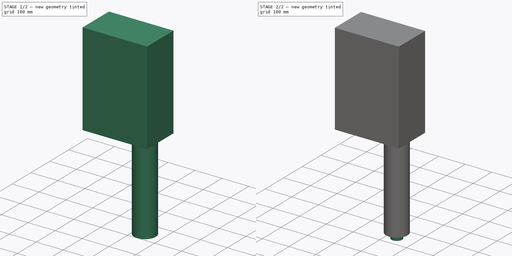
[diagram: build sequence overview — one tinted view per stage of 2, left to right]
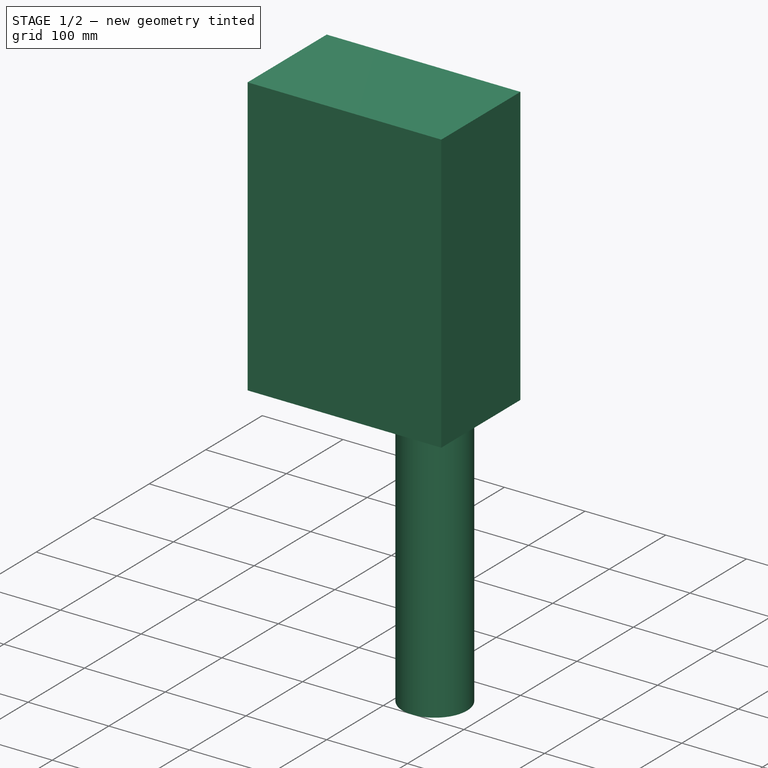
[diagram: stage 1 of 2 — iso view after this stage's code; geometry added in this stage tinted green]
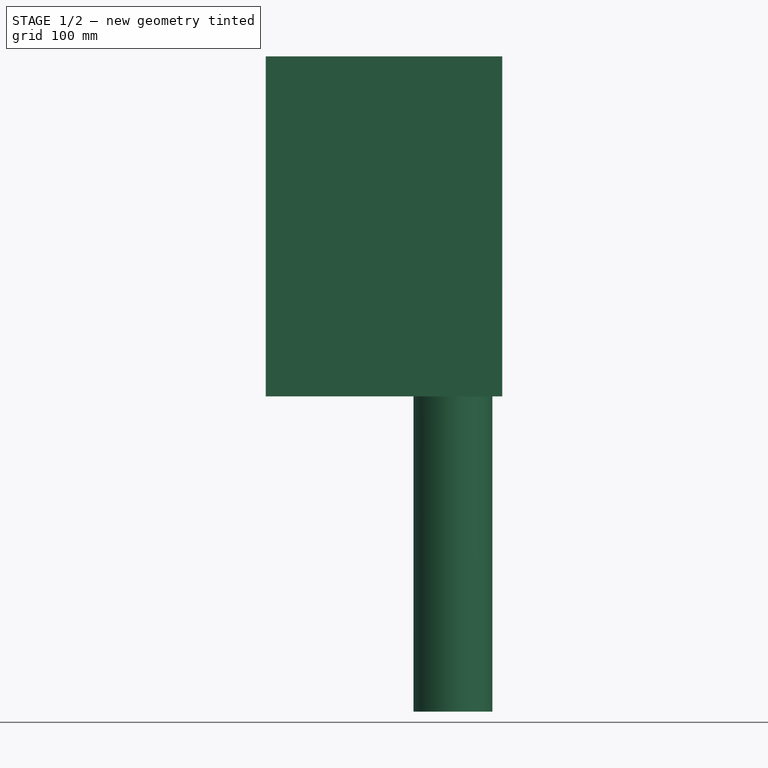
[diagram: stage 1 of 2 — front view after this stage's code; geometry added in this stage tinted green]
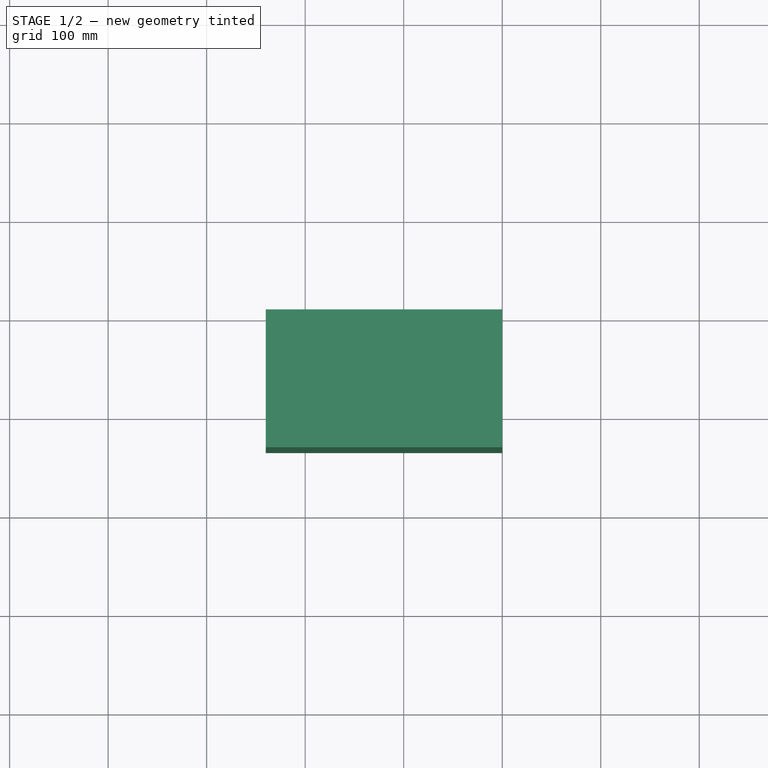
[diagram: stage 1 of 2 — top view after this stage's code; geometry added in this stage tinted green]
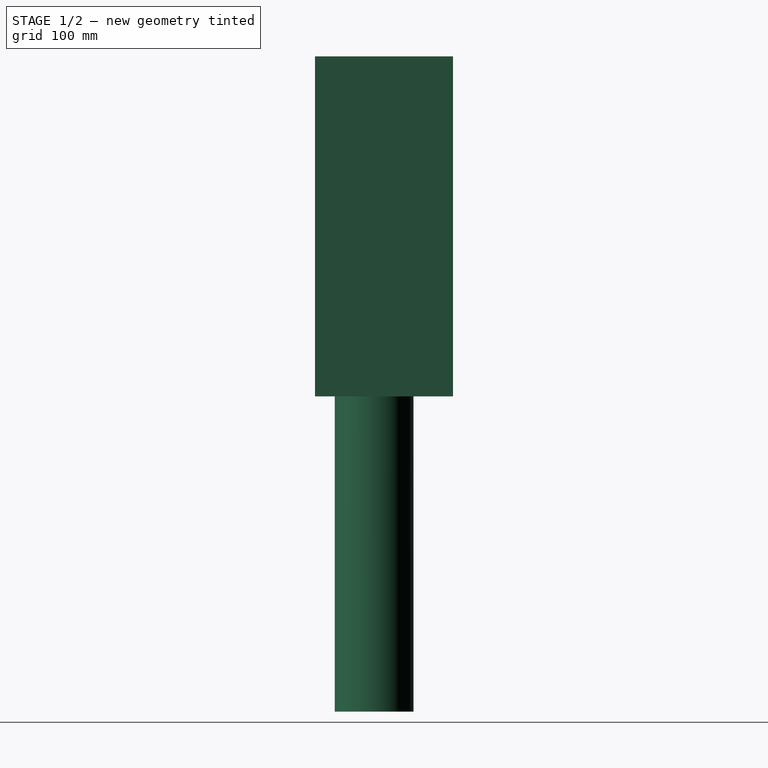
[diagram: stage 1 of 2 — right view after this stage's code; geometry added in this stage tinted green]
FCSTD DOCUMENT  (FreeCAD 0.15R4619 (Git))
Label: diode
License: All rights reserved
LicenseURL: http://en.wikipedia.org/wiki/All_rights_reserved
objects: Sketcher::SketchObject×4, PartDesign::Pad×4
note: 12 computed .brp shape members not serialized (recipe doc carries the construction recipe); baked Part::Feature solids carry a one-line shape summary decoded from their .brp

FEATURE [Sketcher::SketchObject] Sketch
  Placement = pos=(0,0,0) rot=(1,0,0;1.5708rad)
  sketch-geometry (4):
    g0: LineSegment StartX=-140 StartY=170 StartZ=0 EndX=100 EndY=170 EndZ=0
    g1: LineSegment StartX=100 StartY=170 StartZ=0 EndX=100 EndY=-175 EndZ=0
    g2: LineSegment StartX=100 StartY=-175 StartZ=0 EndX=-140 EndY=-175 EndZ=0
    g3: LineSegment StartX=-140 StartY=-175 StartZ=0 EndX=-140 EndY=170 EndZ=0
  constraints (12):
    c: Coincident(g0,g1)
    c: Coincident(g1,g2)
    c: Coincident(g2,g3)
    c: Coincident(g3,g0)
    c: Horizontal(g0)
    c: Horizontal(g2)
    c: Vertical(g1)
    c: Vertical(g3)
    c: Distance(g0) = 240
    c: Distance(g3) = 345
    c: Distance(g-1,g0) = 170
    c: DistanceX(g-1,g0) = 100
FEATURE [PartDesign::Pad] Pad
  Length = 140
  Length2 = 100
  Placement = pos=(0,0,0) rot=(1,0,0;1.5708rad)
  Sketch = -> Sketch
  Type = 0
FEATURE [Sketcher::SketchObject] Sketch002
  Placement = pos=(0,0,-175) rot=(1,0,0;3.14159rad)
  Support = -> Pad [Face3]
  sketch-geometry (1):
    g0: Circle CenterX=50 CenterY=80 CenterZ=0 NormalX=0 NormalY=0 NormalZ=1 Radius=40
  constraints (3):
    c: Radius(g0) = 40
    c: DistanceY(g-1,g0) = 80
    c: DistanceX(g-1,g0) = 50
FEATURE [PartDesign::Pad] Pad002
  Length = 320
  Length2 = 100
  Placement = pos=(0,0,0) rot=(1,0,0;1.5708rad)
  Sketch = -> Sketch002
  Type = 0
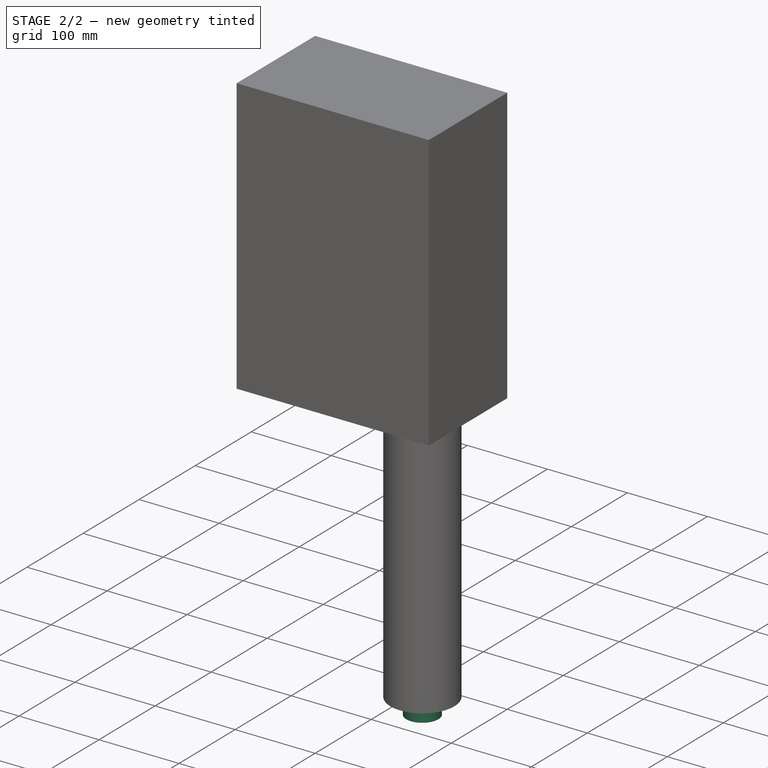
[diagram: stage 2 of 2 — iso view after this stage's code; geometry added in this stage tinted green]
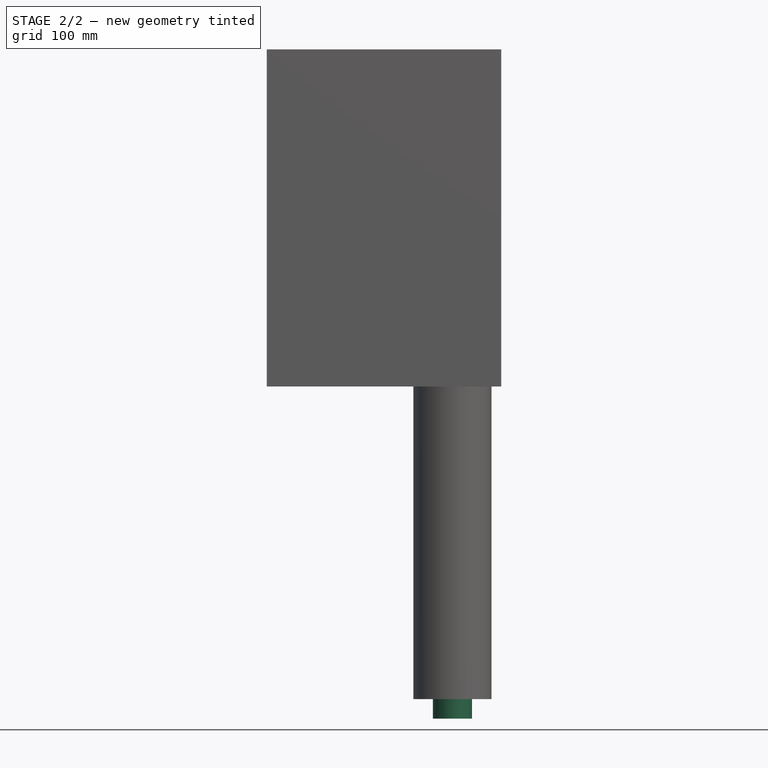
[diagram: stage 2 of 2 — front view after this stage's code; geometry added in this stage tinted green]
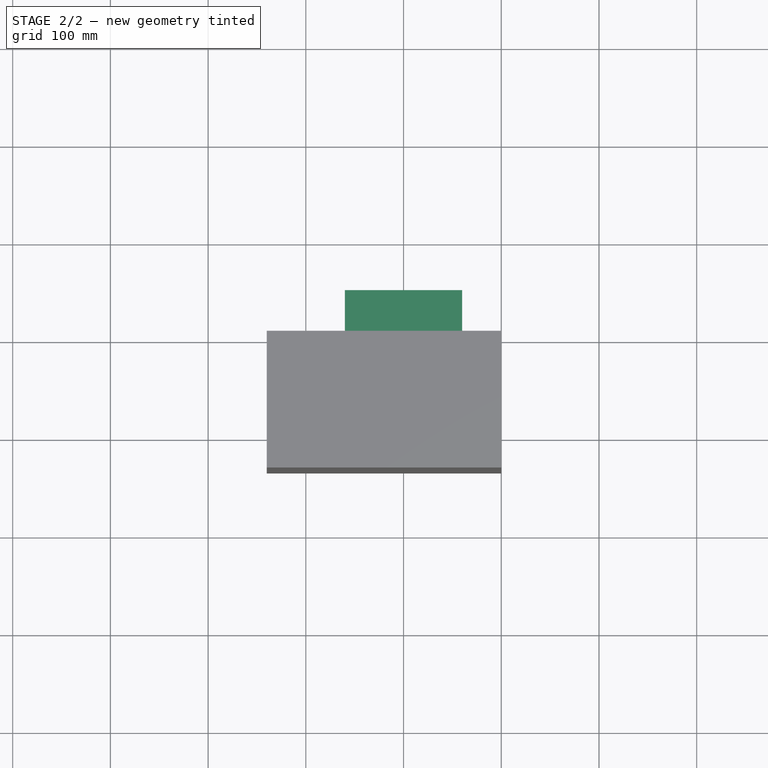
[diagram: stage 2 of 2 — top view after this stage's code; geometry added in this stage tinted green]
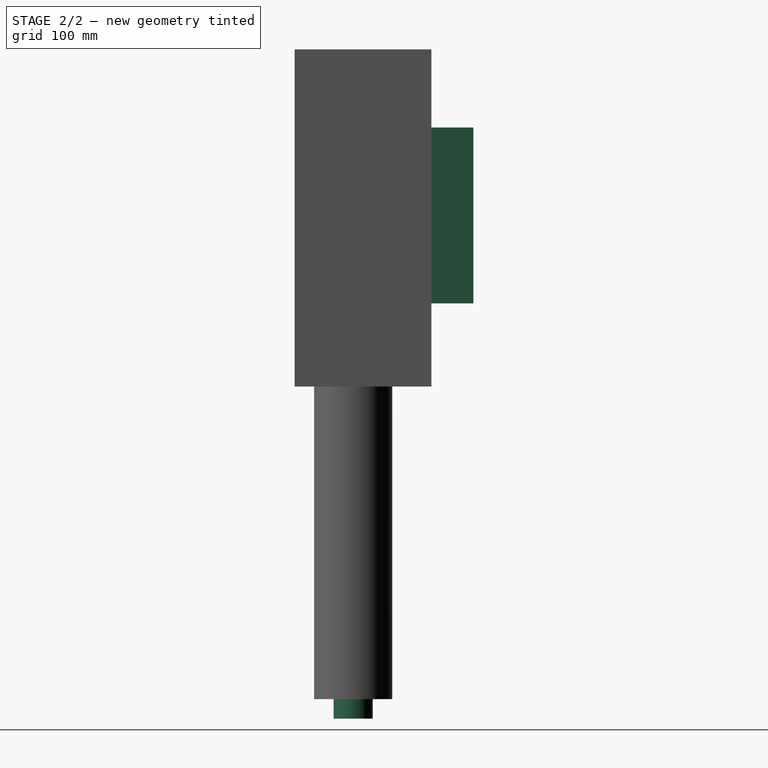
[diagram: stage 2 of 2 — right view after this stage's code; geometry added in this stage tinted green]
FEATURE [Sketcher::SketchObject] Sketch001
  ExternalGeometry = -> [Pad]
  Placement = pos=(0,0,0) rot=(-1,0,0;1.5708rad)
  Support = -> Pad [Face5]
  sketch-geometry (4):
    g0: LineSegment StartX=-60 StartY=90 StartZ=0 EndX=60 EndY=90 EndZ=0
    g1: LineSegment StartX=60 StartY=90 StartZ=0 EndX=60 EndY=-90 EndZ=0
    g2: LineSegment StartX=60 StartY=-90 StartZ=0 EndX=-60 EndY=-90 EndZ=0
    g3: LineSegment StartX=-60 StartY=-90 StartZ=0 EndX=-60 EndY=90 EndZ=0
  constraints (12):
    c: Coincident(g0,g1)
    c: Coincident(g1,g2)
    c: Coincident(g2,g3)
    c: Coincident(g3,g0)
    c: Horizontal(g0)
    c: Horizontal(g2)
    c: Vertical(g1)
    c: Vertical(g3)
    c: DistanceY(g1) = -180
    c: DistanceX(g0) = 120
    c: Distance(g2,g-3) = 80
    c: Symmetric(g0,g0,g-2)
FEATURE [PartDesign::Pad] Pad001
  Length = 43
  Length2 = 100
  Placement = pos=(0,0,0) rot=(1,0,0;1.5708rad)
  Sketch = -> Sketch001
  Type = 0
FEATURE [Sketcher::SketchObject] Sketch003
  ExternalGeometry = -> [Pad002]
  Placement = pos=(0,0,-495) rot=(1,0,0;3.14159rad)
  Support = -> Pad002 [Face8]
  sketch-geometry (1):
    g0: Circle CenterX=50 CenterY=80 CenterZ=0 NormalX=0 NormalY=0 NormalZ=1 Radius=20
  constraints (2):
    c: Coincident(g0,g-3)
    c: Radius(g0) = 20
FEATURE [PartDesign::Pad] Pad003
  Length = 20
  Length2 = 100
  Placement = pos=(0,0,0) rot=(1,0,0;1.5708rad)
  Sketch = -> Sketch003
  Type = 0
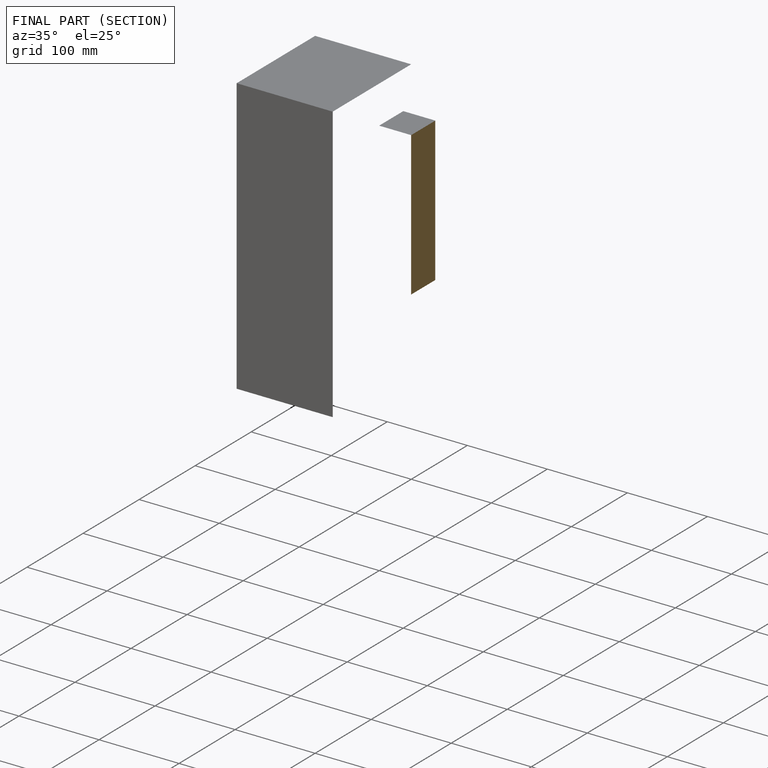
[diagram: finished part — half-section view (interior)]
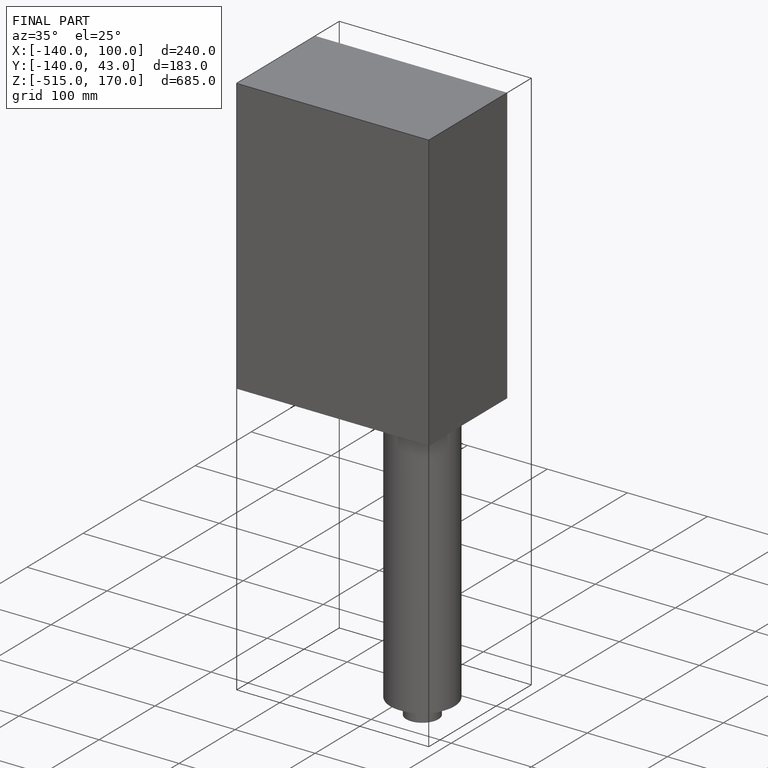
[diagram: finished part — iso view with bounding-box wireframe]
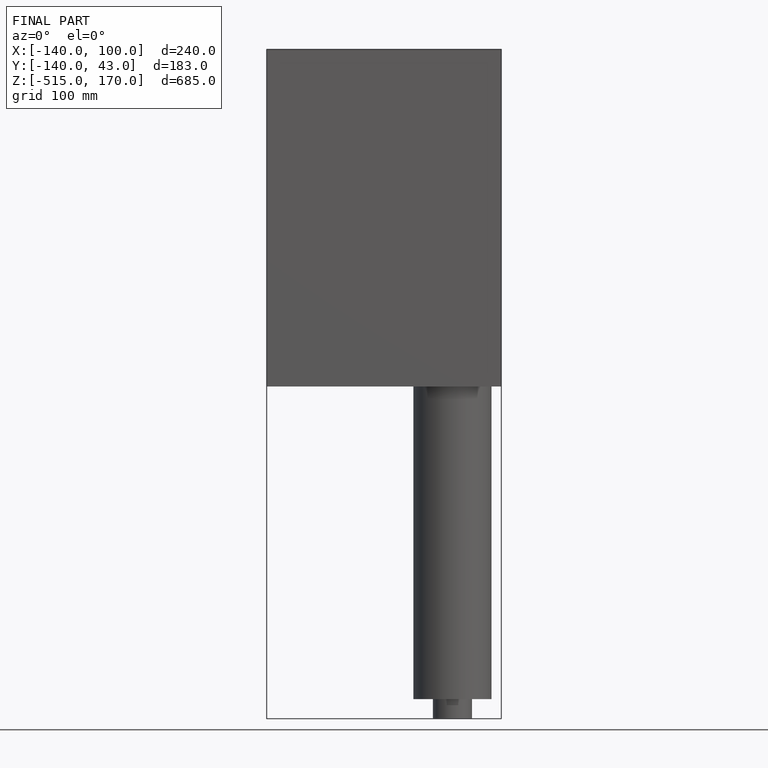
[diagram: finished part — front view with bounding-box wireframe]
